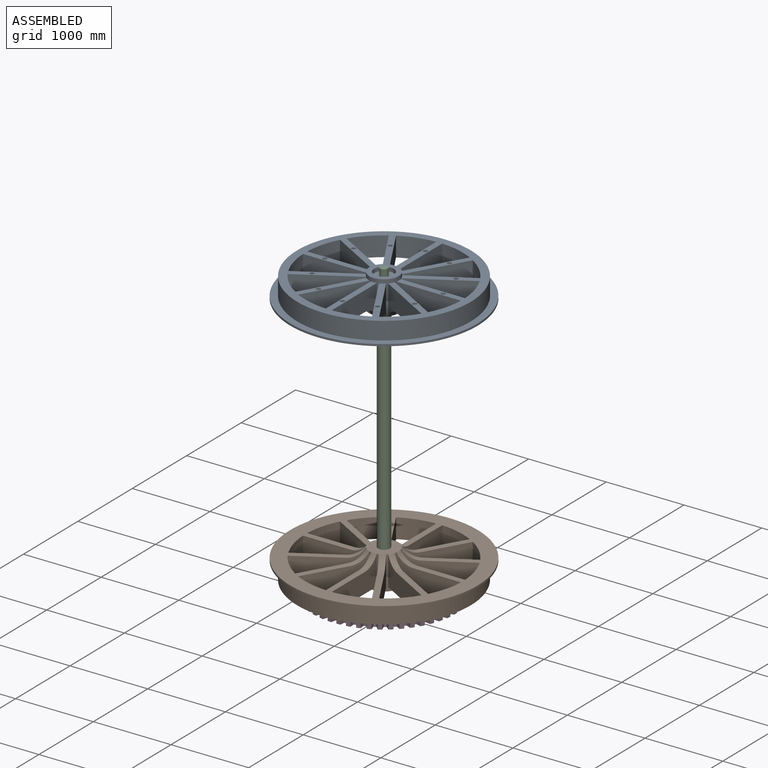
[diagram: assembled view]
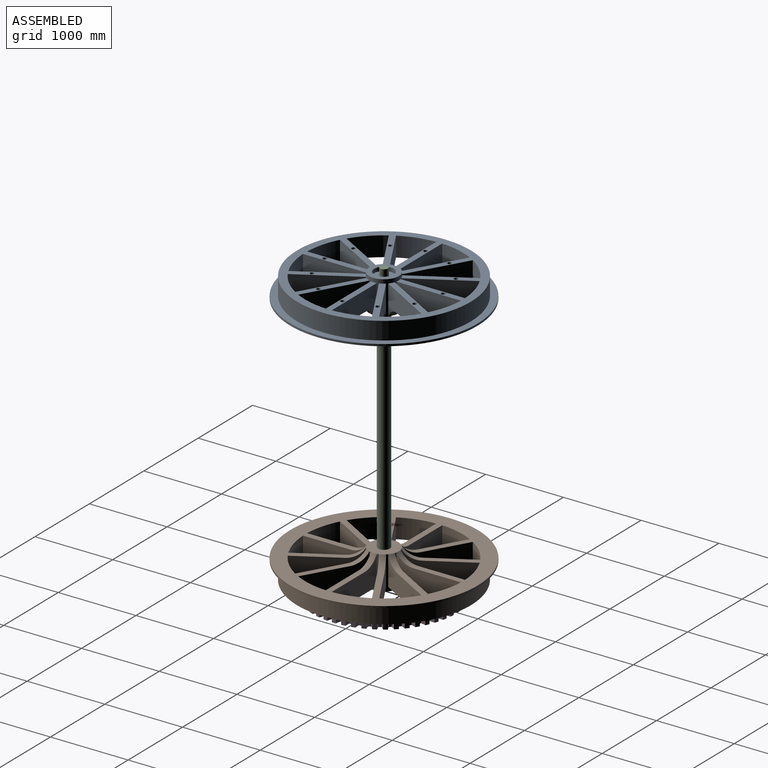
[diagram: assembled view, second angle]
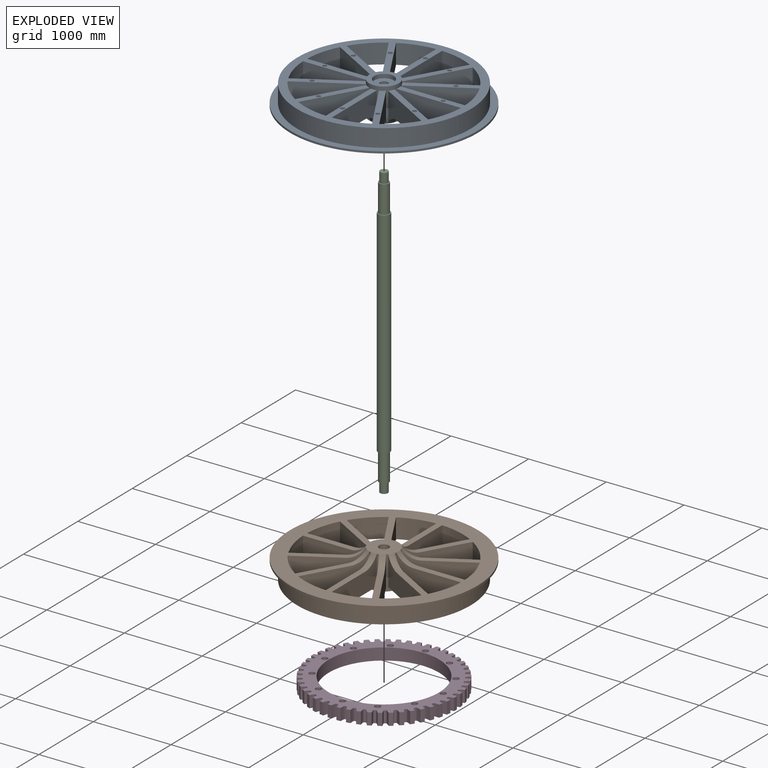
[diagram: exploded view]
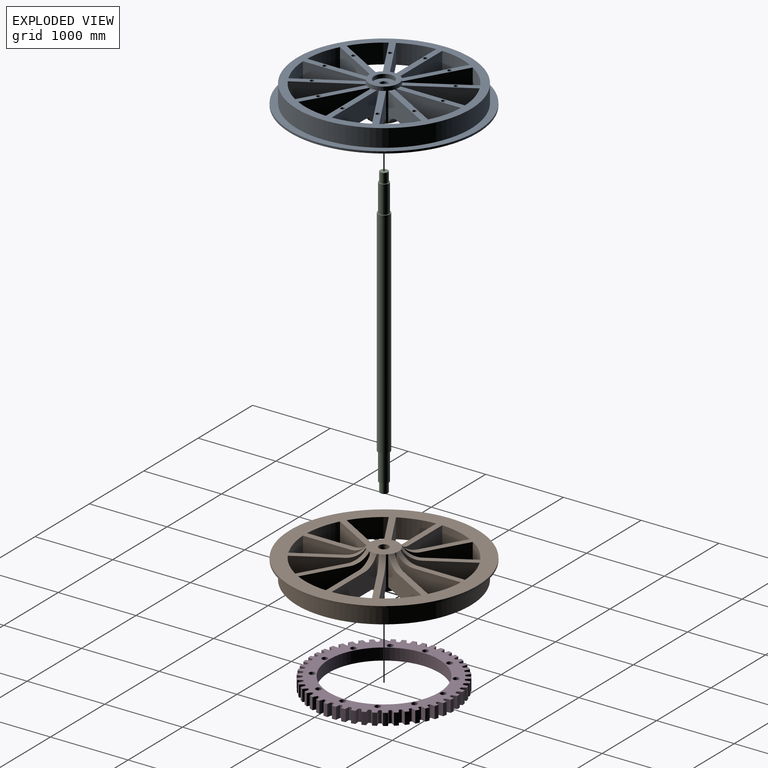
[diagram: exploded view, second angle]
ASSEMBLY  parts=4 mates=3
PART A: 85 faces, bbox 2413x2413x558.8 mm
  f0: cylinder r=50.8mm len=101.6mm, axis (0,0,1), area 8107.3mm2, adj f58,f60
  f1: cylinder r=1016mm len=436.55mm, axis (0,0,-1), area 115762.7mm2, adj f2,f36,f38,f42
  f2: plane 717.62x414.32mm, normal (0.5,0.87,0), area 218706.2mm2, adj f1,f38,f39,f42,f50
  f3: plane 717.62x414.32mm, normal (-0.5,-0.87,0), area 218705.1mm2, adj f4,f38,f39,f42,f50
  f4: cylinder r=1016mm len=319.57mm, axis (0,0,-1), area 115762.7mm2, adj f3,f5,f38,f42
  f5: plane 717.62x414.32mm, normal (0.87,0.5,0), area 218706.2mm2, adj f4,f38,f39,f42,f49
  f6: plane 717.62x414.32mm, normal (-0.87,-0.5,0), area 218705.1mm2, adj f7,f38,f39,f42,f49
  f7: cylinder r=1016mm len=436.55mm, axis (0,0,-1), area 115762.7mm2, adj f6,f8,f38,f42
  f8: plane 828.63x381mm, normal (1,0,0), area 218706.2mm2, adj f7,f38,f39,f42,f48
  f9: plane 828.63x381mm, normal (-1,0,0), area 218705.1mm2, adj f10,f38,f39,f42,f48
  f10: cylinder r=1016mm len=436.55mm, axis (0,0,-1), area 115762.7mm2, adj f9,f11,f38,f42
  f11: plane 717.62x414.32mm, normal (0.87,-0.5,0), area 218706.2mm2, adj f10,f38,f39,f42,f47
  f12: plane 717.62x414.32mm, normal (-0.87,0.5,0), area 218705.1mm2, adj f13,f38,f39,f42,f47
  f13: cylinder r=1016mm len=319.57mm, axis (0,0,-1), area 115762.7mm2, adj f12,f14,f38,f42
  f14: plane 717.62x414.32mm, normal (0.5,-0.87,0), area 218706.2mm2, adj f13,f38,f39,f42,f46
  f15: plane 717.62x414.32mm, normal (-0.5,0.87,0), area 218705.1mm2, adj f16,f38,f39,f42,f46
  f16: cylinder r=1016mm len=436.55mm, axis (0,0,-1), area 115762.7mm2, adj f15,f17,f38,f42
  f17: plane 828.63x381mm, normal (0,-1,0), area 218706.2mm2, adj f16,f38,f39,f42,f45
  f18: plane 828.63x381mm, normal (0,1,0), area 218705.1mm2, adj f19,f38,f39,f42,f45
  f19: cylinder r=1016mm len=436.55mm, axis (0,0,-1), area 115762.7mm2, adj f18,f20,f38,f42
  f20: plane 717.62x414.32mm, normal (-0.5,-0.87,0), area 218706.2mm2, adj f19,f38,f39,f42,f52
  f21: plane 717.62x414.32mm, normal (0.5,0.87,0), area 218705.1mm2, adj f22,f38,f39,f42,f52
  f22: cylinder r=1016mm len=319.57mm, axis (0,0,-1), area 115762.7mm2, adj f21,f23,f38,f42
  f23: plane 717.62x414.32mm, normal (-0.87,-0.5,0), area 218706.2mm2, adj f22,f38,f39,f42,f51
  f24: plane 717.62x414.32mm, normal (0.87,0.5,0), area 218705.1mm2, adj f25,f38,f39,f42,f51
  f25: cylinder r=1016mm len=436.55mm, axis (0,0,-1), area 115762.7mm2, adj f24,f26,f38,f42
  f26: plane 828.63x381mm, normal (-1,0,0), area 218707.3mm2, adj f25,f38,f39,f42,f53
  f27: plane 828.63x381mm, normal (1,0,0), area 218707.3mm2, adj f28,f38,f39,f42,f53
  f28: cylinder r=1016mm len=436.55mm, axis (0,0,-1), area 115762.7mm2, adj f27,f29,f38,f42
  f29: plane 717.62x414.32mm, normal (-0.87,0.5,0), area 218706.2mm2, adj f28,f38,f39,f42,f54
  f30: plane 717.62x414.32mm, normal (0.87,-0.5,0), area 218705.1mm2, adj f31,f38,f39,f42,f54
  f31: cylinder r=1016mm len=319.57mm, axis (0,0,-1), area 115762.7mm2, adj f30,f32,f38,f42
  f32: plane 717.62x414.32mm, normal (-0.5,0.87,0), area 218706.2mm2, adj f31,f38,f39,f42,f55
  f33: plane 717.62x414.32mm, normal (0.5,-0.87,0), area 218705.1mm2, adj f34,f38,f39,f42,f55
  f34: cylinder r=1016mm len=436.55mm, axis (0,0,-1), area 115762.7mm2, adj f33,f35,f38,f42
  f35: plane 828.63x381mm, normal (0,1,0), area 218706.2mm2, adj f34,f38,f39,f42,f56
  f36: plane 828.63x381mm, normal (0,-1,0), area 218705.1mm2, adj f1,f38,f39,f42,f56
  f37: cylinder r=1117.6mm len=2235.2mm, axis (0,0,-1), area 1605249.3mm2, adj f38,f43
  f38: plane 2235.2x2235.2mm, normal (0,0,1), area 1412480.7mm2, adj f1,f2,f3,f4,f5,f6,f7,f8
  f39: cylinder r=190.5mm len=431.8mm, axis (0,0,-1), area 166089.8mm2, adj f2,f3,f5,f6,f8,f9,f11,f12
  f40: plane 381x381mm, normal (0,0,1), area 63338.4mm2, adj f39,f59
  f41: cylinder r=1206.5mm len=2413mm, axis (0,0,1), area 192548.8mm2, adj f42,f43
  f42: plane 2413x2413mm, normal (0,0,-1), area 1884125.2mm2, adj f1,f2,f3,f4,f5,f6,f7,f8
  f43: plane 2413x2413mm, normal (0,0,1), area 649092.3mm2, adj f37,f41
  f44: plane 381x381mm, normal (0,0,-1), area 101341.5mm2, adj f39,f45,f46,f47,f48,f49,f50,f51
  f45: torus R=410.47mm, axis (0,0,1), area 20337.7mm2, adj f17,f18,f42,f44
  f46: torus R=410.47mm, axis (0,0,1), area 20337.7mm2, adj f14,f15,f42,f44
  f47: torus R=410.47mm, axis (0,0,1), area 20337.7mm2, adj f11,f12,f42,f44
  f48: torus R=410.47mm, axis (0,0,1), area 20337.7mm2, adj f8,f9,f42,f44
  f49: torus R=410.47mm, axis (0,0,1), area 20337.7mm2, adj f5,f6,f42,f44
  f50: torus R=410.47mm, axis (0,0,1), area 20337.7mm2, adj f2,f3,f42,f44
  f51: torus R=410.47mm, axis (0,0,1), area 20337.7mm2, adj f23,f24,f42,f44
  f52: torus R=410.47mm, axis (0,0,1), area 20337.7mm2, adj f20,f21,f42,f44
  f53: torus R=410.47mm, axis (0,0,1), area 20337.7mm2, adj f26,f27,f42,f44
  f54: torus R=410.47mm, axis (0,0,1), area 20337.7mm2, adj f29,f30,f42,f44
  f55: torus R=410.47mm, axis (0,0,1), area 20337.7mm2, adj f32,f33,f42,f44
  f56: torus R=410.47mm, axis (0,0,1), area 20337.7mm2, adj f35,f36,f42,f44
  f57: cylinder r=63.5mm len=355.6mm, axis (0,0,-1), area 141878.1mm2, adj f44,f58
  f58: plane 127x127mm, normal (0,0,-1), area 4560.4mm2, adj f0,f57
  f59: cylinder r=127mm len=254mm, axis (0,0,1), area 40536.6mm2, adj f40,f60
  f60: plane 254x254mm, normal (0,0,1), area 42563.4mm2, adj f0,f59
  f61: plane 50.8x50.8mm, normal (0,0,1), area 2026.8mm2, adj f62
  f62: cylinder r=25.4mm len=228.6mm, axis (0,0,-1), area 36482.9mm2, adj f38,f61
  f63: plane 50.8x50.8mm, normal (0,0,1), area 2026.8mm2, adj f64
  f64: cylinder r=25.4mm len=228.6mm, axis (0,0,-1), area 36482.9mm2, adj f38,f63
  f65: plane 50.8x50.8mm, normal (0,0,1), area 2026.8mm2, adj f66
  f66: cylinder r=25.4mm len=228.6mm, axis (0,0,-1), area 36482.9mm2, adj f38,f65
  f67: plane 50.8x50.8mm, normal (0,0,1), area 2026.8mm2, adj f68
  f68: cylinder r=25.4mm len=228.6mm, axis (0,0,-1), area 36482.9mm2, adj f38,f67
  f69: plane 50.8x50.8mm, normal (0,0,1), area 2026.8mm2, adj f70
  f70: cylinder r=25.4mm len=228.6mm, axis (0,0,-1), area 36482.9mm2, adj f38,f69
  f71: plane 50.8x50.8mm, normal (0,0,1), area 2026.8mm2, adj f72
  f72: cylinder r=25.4mm len=228.6mm, axis (0,0,-1), area 36482.9mm2, adj f38,f71
  f73: plane 50.8x50.8mm, normal (0,0,1), area 2026.8mm2, adj f74
  f74: cylinder r=25.4mm len=228.6mm, axis (0,0,-1), area 36482.9mm2, adj f38,f73
  f75: plane 50.8x50.8mm, normal (0,0,1), area 2026.8mm2, adj f76
  f76: cylinder r=25.4mm len=228.6mm, axis (0,0,-1), area 36482.9mm2, adj f38,f75
  f77: plane 50.8x50.8mm, normal (0,0,1), area 2026.8mm2, adj f78
  f78: cylinder r=25.4mm len=228.6mm, axis (0,0,-1), area 36482.9mm2, adj f38,f77
  f79: plane 50.8x50.8mm, normal (0,0,1), area 2026.8mm2, adj f80
  f80: cylinder r=25.4mm len=228.6mm, axis (0,0,-1), area 36482.9mm2, adj f38,f79
  f81: plane 50.8x50.8mm, normal (0,0,1), area 2026.8mm2, adj f82
  f82: cylinder r=25.4mm len=228.6mm, axis (0,0,-1), area 36482.9mm2, adj f38,f81
  f83: plane 50.8x50.8mm, normal (0,0,1), area 2026.8mm2, adj f84
  f84: cylinder r=25.4mm len=228.6mm, axis (0,0,-1), area 36482.9mm2, adj f38,f83
PART B: same geometry as A
PART C: 11 faces, bbox 152.4x152.4x3733.8 mm
  f0: cylinder r=76.2mm len=2768.6mm, axis (0,0,-1), area 1325546.8mm2, adj f1,f2
  f1: plane 152.4x152.4mm, normal (0,0,1), area 5573.8mm2, adj f0,f7
  f2: plane 152.4x152.4mm, normal (0,0,-1), area 5573.8mm2, adj f0,f6
  f3: plane 101.6x101.6mm, normal (0,0,-1), area 8107.3mm2, adj f4
  f4: cylinder r=50.8mm len=127mm, axis (0,0,-1), area 40536.6mm2, adj f3,f5
  f5: plane 127x127mm, normal (0,0,-1), area 4560.4mm2, adj f4,f6
  f6: cylinder r=63.5mm len=355.6mm, axis (0,0,-1), area 141878.1mm2, adj f2,f5
  f7: cylinder r=63.5mm len=355.6mm, axis (0,0,-1), area 141878.1mm2, adj f1,f8
  f8: plane 127x127mm, normal (0,0,1), area 4560.4mm2, adj f7,f9
  f9: cylinder r=50.8mm len=127mm, axis (0,0,-1), area 40536.6mm2, adj f8,f10
  f10: plane 101.6x101.6mm, normal (0,0,1), area 8107.3mm2, adj f9
PART D: 215 faces, bbox 1841.5x1840.4x152.4 mm
  f0: cylinder r=857.25mm len=152.4mm, axis (0,0,-1), area 4849.1mm2, adj f1,f212,f213,f214
  f1: cylinder r=304.8mm len=152.4mm, axis (0,0,-1), area 10054.2mm2, adj f0,f2,f213,f214
  f2: cylinder r=920.75mm len=152.4mm, axis (0,0,-1), area 7954.1mm2, adj f1,f3,f213,f214
  f3: cylinder r=304.8mm len=152.4mm, axis (0,0,-1), area 9837.2mm2, adj f2,f4,f213,f214
  f4: cylinder r=857.25mm len=152.4mm, axis (0,0,-1), area 4849.1mm2, adj f3,f5,f213,f214
  f5: cylinder r=304.8mm len=152.4mm, axis (0,0,-1), area 10054.2mm2, adj f4,f6,f213,f214
  f6: cylinder r=920.75mm len=152.4mm, axis (0,0,-1), area 7954.1mm2, adj f5,f7,f213,f214
  f7: cylinder r=304.8mm len=152.4mm, axis (0,0,-1), area 9837.2mm2, adj f6,f8,f213,f214
  f8: cylinder r=857.25mm len=152.4mm, axis (0,0,-1), area 4849.1mm2, adj f7,f9,f213,f214
  f9: cylinder r=304.8mm len=152.4mm, axis (0,0,-1), area 10054.2mm2, adj f8,f10,f213,f214
  f10: cylinder r=920.75mm len=152.4mm, axis (0,0,-1), area 7954.1mm2, adj f9,f11,f213,f214
  f11: cylinder r=304.8mm len=152.4mm, axis (0,0,-1), area 9837.2mm2, adj f10,f12,f213,f214
  f12: cylinder r=857.25mm len=152.4mm, axis (0,0,-1), area 4849.1mm2, adj f11,f13,f213,f214
  f13: cylinder r=304.8mm len=152.4mm, axis (0,0,-1), area 10054.2mm2, adj f12,f14,f213,f214
  f14: cylinder r=920.75mm len=152.4mm, axis (0,0,-1), area 7954.1mm2, adj f13,f15,f213,f214
  f15: cylinder r=304.8mm len=152.4mm, axis (0,0,-1), area 9837.2mm2, adj f14,f16,f213,f214
  f16: cylinder r=857.25mm len=152.4mm, axis (0,0,-1), area 4849.1mm2, adj f15,f17,f213,f214
  f17: cylinder r=304.8mm len=152.4mm, axis (0,0,-1), area 10054.2mm2, adj f16,f18,f213,f214
  f18: cylinder r=920.75mm len=152.4mm, axis (0,0,-1), area 7954.1mm2, adj f17,f19,f213,f214
  f19: cylinder r=304.8mm len=152.4mm, axis (0,0,-1), area 9837.2mm2, adj f18,f20,f213,f214
  f20: cylinder r=857.25mm len=152.4mm, axis (0,0,-1), area 4849.1mm2, adj f19,f21,f213,f214
  f21: cylinder r=304.8mm len=152.4mm, axis (0,0,-1), area 10054.2mm2, adj f20,f22,f213,f214
  f22: cylinder r=920.75mm len=152.4mm, axis (0,0,-1), area 7954.1mm2, adj f21,f23,f213,f214
  f23: cylinder r=304.8mm len=152.4mm, axis (0,0,-1), area 9837.2mm2, adj f22,f24,f213,f214
  f24: cylinder r=857.25mm len=152.4mm, axis (0,0,-1), area 4849.1mm2, adj f23,f25,f213,f214
  f25: cylinder r=304.8mm len=152.4mm, axis (0,0,-1), area 10054.2mm2, adj f24,f26,f213,f214
  f26: cylinder r=920.75mm len=152.4mm, axis (0,0,-1), area 7954.1mm2, adj f25,f27,f213,f214
  f27: cylinder r=304.8mm len=152.4mm, axis (0,0,-1), area 9837.2mm2, adj f26,f28,f213,f214
  f28: cylinder r=857.25mm len=152.4mm, axis (0,0,-1), area 4849.1mm2, adj f27,f29,f213,f214
  f29: cylinder r=304.8mm len=152.4mm, axis (0,0,-1), area 10054.2mm2, adj f28,f30,f213,f214
  f30: cylinder r=920.75mm len=152.4mm, axis (0,0,-1), area 7954.1mm2, adj f29,f31,f213,f214
  f31: cylinder r=304.8mm len=152.4mm, axis (0,0,-1), area 9837.2mm2, adj f30,f32,f213,f214
  f32: cylinder r=857.25mm len=152.4mm, axis (0,0,-1), area 4849.1mm2, adj f31,f33,f213,f214
  f33: cylinder r=304.8mm len=152.4mm, axis (0,0,-1), area 10054.2mm2, adj f32,f34,f213,f214
  f34: cylinder r=920.75mm len=152.4mm, axis (0,0,-1), area 7954.1mm2, adj f33,f35,f213,f214
  f35: cylinder r=304.8mm len=152.4mm, axis (0,0,-1), area 9837.2mm2, adj f34,f36,f213,f214
  f36: cylinder r=857.25mm len=152.4mm, axis (0,0,-1), area 4849.1mm2, adj f35,f37,f213,f214
  f37: cylinder r=304.8mm len=152.4mm, axis (0,0,-1), area 10054.2mm2, adj f36,f38,f213,f214
  f38: cylinder r=920.75mm len=152.4mm, axis (0,0,-1), area 7954.1mm2, adj f37,f39,f213,f214
  f39: cylinder r=304.8mm len=152.4mm, axis (0,0,-1), area 9837.2mm2, adj f38,f40,f213,f214
  f40: cylinder r=857.25mm len=152.4mm, axis (0,0,-1), area 4849.1mm2, adj f39,f41,f213,f214
  f41: cylinder r=304.8mm len=152.4mm, axis (0,0,-1), area 10054.2mm2, adj f40,f42,f213,f214
  f42: cylinder r=920.75mm len=152.4mm, axis (0,0,-1), area 7954.1mm2, adj f41,f43,f213,f214
  f43: cylinder r=304.8mm len=152.4mm, axis (0,0,-1), area 9837.2mm2, adj f42,f44,f213,f214
  f44: cylinder r=857.25mm len=152.4mm, axis (0,0,-1), area 4849.1mm2, adj f43,f45,f213,f214
  f45: cylinder r=304.8mm len=152.4mm, axis (0,0,-1), area 10054.2mm2, adj f44,f46,f213,f214
  f46: cylinder r=920.75mm len=152.4mm, axis (0,0,-1), area 7954.1mm2, adj f45,f47,f213,f214
  f47: cylinder r=304.8mm len=152.4mm, axis (0,0,-1), area 9837.2mm2, adj f46,f48,f213,f214
  f48: cylinder r=857.25mm len=152.4mm, axis (0,0,-1), area 4849.1mm2, adj f47,f49,f213,f214
  f49: cylinder r=304.8mm len=152.4mm, axis (0,0,-1), area 10054.2mm2, adj f48,f50,f213,f214
  f50: cylinder r=920.75mm len=152.4mm, axis (0,0,-1), area 7954.1mm2, adj f49,f51,f213,f214
  f51: cylinder r=304.8mm len=152.4mm, axis (0,0,-1), area 9837.2mm2, adj f50,f52,f213,f214
  f52: cylinder r=857.25mm len=152.4mm, axis (0,0,-1), area 4849.1mm2, adj f51,f53,f213,f214
  f53: cylinder r=304.8mm len=152.4mm, axis (0,0,-1), area 10054.2mm2, adj f52,f54,f213,f214
  f54: cylinder r=920.75mm len=152.4mm, axis (0,0,-1), area 7954.1mm2, adj f53,f55,f213,f214
  f55: cylinder r=304.8mm len=152.4mm, axis (0,0,-1), area 9837.2mm2, adj f54,f56,f213,f214
  f56: cylinder r=857.25mm len=152.4mm, axis (0,0,-1), area 4849.1mm2, adj f55,f57,f213,f214
  f57: cylinder r=304.8mm len=152.4mm, axis (0,0,-1), area 10054.2mm2, adj f56,f58,f213,f214
  f58: cylinder r=920.75mm len=152.4mm, axis (0,0,-1), area 7954.1mm2, adj f57,f59,f213,f214
  f59: cylinder r=304.8mm len=152.4mm, axis (0,0,-1), area 9837.2mm2, adj f58,f60,f213,f214
  f60: cylinder r=857.25mm len=152.4mm, axis (0,0,-1), area 4849.1mm2, adj f59,f61,f213,f214
  f61: cylinder r=304.8mm len=152.4mm, axis (0,0,-1), area 10054.2mm2, adj f60,f62,f213,f214
  f62: cylinder r=920.75mm len=152.4mm, axis (0,0,-1), area 7954.1mm2, adj f61,f63,f213,f214
  f63: cylinder r=304.8mm len=152.4mm, axis (0,0,-1), area 9837.2mm2, adj f62,f64,f213,f214
  f64: cylinder r=857.25mm len=152.4mm, axis (0,0,-1), area 4849.1mm2, adj f63,f65,f213,f214
  f65: cylinder r=304.8mm len=152.4mm, axis (0,0,-1), area 10054.2mm2, adj f64,f66,f213,f214
  f66: cylinder r=920.75mm len=152.4mm, axis (0,0,-1), area 7954.1mm2, adj f65,f67,f213,f214
  f67: cylinder r=304.8mm len=152.4mm, axis (0,0,-1), area 9837.2mm2, adj f66,f68,f213,f214
  f68: cylinder r=857.25mm len=152.4mm, axis (0,0,-1), area 4849.1mm2, adj f67,f69,f213,f214
  f69: cylinder r=304.8mm len=152.4mm, axis (0,0,-1), area 10054.2mm2, adj f68,f70,f213,f214
  f70: cylinder r=920.75mm len=152.4mm, axis (0,0,-1), area 7954.1mm2, adj f69,f71,f213,f214
  f71: cylinder r=304.8mm len=152.4mm, axis (0,0,-1), area 9837.2mm2, adj f70,f72,f213,f214
  f72: cylinder r=857.25mm len=152.4mm, axis (0,0,-1), area 4849.1mm2, adj f71,f73,f213,f214
  f73: cylinder r=304.8mm len=152.4mm, axis (0,0,-1), area 10054.2mm2, adj f72,f74,f213,f214
  f74: cylinder r=920.75mm len=152.4mm, axis (0,0,-1), area 7954.1mm2, adj f73,f75,f213,f214
  f75: cylinder r=304.8mm len=152.4mm, axis (0,0,-1), area 9837.2mm2, adj f74,f76,f213,f214
  f76: cylinder r=857.25mm len=152.4mm, axis (0,0,-1), area 4849.1mm2, adj f75,f77,f213,f214
  f77: cylinder r=304.8mm len=152.4mm, axis (0,0,-1), area 10054.2mm2, adj f76,f78,f213,f214
  f78: cylinder r=920.75mm len=152.4mm, axis (0,0,-1), area 7954.1mm2, adj f77,f79,f213,f214
  f79: cylinder r=304.8mm len=152.4mm, axis (0,0,-1), area 9837.2mm2, adj f78,f80,f213,f214
  f80: cylinder r=857.25mm len=152.4mm, axis (0,0,-1), area 4849.1mm2, adj f79,f81,f213,f214
  f81: cylinder r=304.8mm len=152.4mm, axis (0,0,-1), area 10054.2mm2, adj f80,f82,f213,f214
  f82: cylinder r=920.75mm len=152.4mm, axis (0,0,-1), area 7954.1mm2, adj f81,f83,f213,f214
  f83: cylinder r=304.8mm len=152.4mm, axis (0,0,-1), area 9837.2mm2, adj f82,f84,f213,f214
  f84: cylinder r=857.25mm len=152.4mm, axis (0,0,-1), area 4849.1mm2, adj f83,f85,f213,f214
  f85: cylinder r=304.8mm len=152.4mm, axis (0,0,-1), area 10054.2mm2, adj f84,f86,f213,f214
  f86: cylinder r=920.75mm len=152.4mm, axis (0,0,-1), area 7954.1mm2, adj f85,f87,f213,f214
  f87: cylinder r=304.8mm len=152.4mm, axis (0,0,-1), area 9837.2mm2, adj f86,f88,f213,f214
  f88: cylinder r=857.25mm len=152.4mm, axis (0,0,-1), area 4849.1mm2, adj f87,f89,f213,f214
  f89: cylinder r=304.8mm len=152.4mm, axis (0,0,-1), area 10054.2mm2, adj f88,f90,f213,f214
  f90: cylinder r=920.75mm len=152.4mm, axis (0,0,-1), area 7954.1mm2, adj f89,f91,f213,f214
  f91: cylinder r=304.8mm len=152.4mm, axis (0,0,-1), area 9837.2mm2, adj f90,f92,f213,f214
  f92: cylinder r=857.25mm len=152.4mm, axis (0,0,-1), area 4849.1mm2, adj f91,f93,f213,f214
  f93: cylinder r=304.8mm len=152.4mm, axis (0,0,-1), area 10054.2mm2, adj f92,f94,f213,f214
  f94: cylinder r=920.75mm len=152.4mm, axis (0,0,-1), area 7954.1mm2, adj f93,f95,f213,f214
  f95: cylinder r=304.8mm len=152.4mm, axis (0,0,-1), area 9837.2mm2, adj f94,f96,f213,f214
  f96: cylinder r=857.25mm len=152.4mm, axis (0,0,-1), area 4849.1mm2, adj f95,f97,f213,f214
  f97: cylinder r=304.8mm len=152.4mm, axis (0,0,-1), area 10054.2mm2, adj f96,f98,f213,f214
  f98: cylinder r=920.75mm len=152.4mm, axis (0,0,-1), area 7954.1mm2, adj f97,f99,f213,f214
  f99: cylinder r=304.8mm len=152.4mm, axis (0,0,-1), area 9837.2mm2, adj f98,f100,f213,f214
  f100: cylinder r=857.25mm len=152.4mm, axis (0,0,-1), area 4849.1mm2, adj f99,f101,f213,f214
  f101: cylinder r=304.8mm len=152.4mm, axis (0,0,-1), area 10054.2mm2, adj f100,f102,f213,f214
  f102: cylinder r=920.75mm len=152.4mm, axis (0,0,-1), area 7954.1mm2, adj f101,f103,f213,f214
  f103: cylinder r=304.8mm len=152.4mm, axis (0,0,-1), area 9837.2mm2, adj f102,f104,f213,f214
  f104: cylinder r=857.25mm len=152.4mm, axis (0,0,-1), area 4849.1mm2, adj f103,f105,f213,f214
  f105: cylinder r=304.8mm len=152.4mm, axis (0,0,-1), area 10054.2mm2, adj f104,f106,f213,f214
  f106: cylinder r=920.75mm len=152.4mm, axis (0,0,-1), area 7954.1mm2, adj f105,f107,f213,f214
  f107: cylinder r=304.8mm len=152.4mm, axis (0,0,-1), area 9837.2mm2, adj f106,f108,f213,f214
  f108: cylinder r=857.25mm len=152.4mm, axis (0,0,-1), area 4849.1mm2, adj f107,f109,f213,f214
  f109: cylinder r=304.8mm len=152.4mm, axis (0,0,-1), area 10054.2mm2, adj f108,f110,f213,f214
  f110: cylinder r=920.75mm len=152.4mm, axis (0,0,-1), area 7954.1mm2, adj f109,f111,f213,f214
  f111: cylinder r=304.8mm len=152.4mm, axis (0,0,-1), area 9837.2mm2, adj f110,f112,f213,f214
  f112: cylinder r=857.25mm len=152.4mm, axis (0,0,-1), area 4849.1mm2, adj f111,f113,f213,f214
  f113: cylinder r=304.8mm len=152.4mm, axis (0,0,-1), area 10054.2mm2, adj f112,f114,f213,f214
  f114: cylinder r=920.75mm len=152.4mm, axis (0,0,-1), area 7954.1mm2, adj f113,f115,f213,f214
  f115: cylinder r=304.8mm len=152.4mm, axis (0,0,-1), area 9837.2mm2, adj f114,f116,f213,f214
  f116: cylinder r=857.25mm len=152.4mm, axis (0,0,-1), area 4849.1mm2, adj f115,f117,f213,f214
  f117: cylinder r=304.8mm len=152.4mm, axis (0,0,-1), area 10054.2mm2, adj f116,f118,f213,f214
  f118: cylinder r=920.75mm len=152.4mm, axis (0,0,-1), area 7954.1mm2, adj f117,f119,f213,f214
  f119: cylinder r=304.8mm len=152.4mm, axis (0,0,-1), area 9837.2mm2, adj f118,f120,f213,f214
  f120: cylinder r=857.25mm len=152.4mm, axis (0,0,-1), area 4849.1mm2, adj f119,f121,f213,f214
  f121: cylinder r=304.8mm len=152.4mm, axis (0,0,-1), area 10054.2mm2, adj f120,f122,f213,f214
  f122: cylinder r=920.75mm len=152.4mm, axis (0,0,-1), area 7954.1mm2, adj f121,f123,f213,f214
  f123: cylinder r=304.8mm len=152.4mm, axis (0,0,-1), area 9837.2mm2, adj f122,f124,f213,f214
  f124: cylinder r=857.25mm len=152.4mm, axis (0,0,-1), area 4849.1mm2, adj f123,f125,f213,f214
  f125: cylinder r=304.8mm len=152.4mm, axis (0,0,-1), area 10054.2mm2, adj f124,f126,f213,f214
  f126: cylinder r=920.75mm len=152.4mm, axis (0,0,-1), area 7954.1mm2, adj f125,f127,f213,f214
  f127: cylinder r=304.8mm len=152.4mm, axis (0,0,-1), area 9837.2mm2, adj f126,f128,f213,f214
  f128: cylinder r=857.25mm len=152.4mm, axis (0,0,-1), area 4849.1mm2, adj f127,f129,f213,f214
  f129: cylinder r=304.8mm len=152.4mm, axis (0,0,-1), area 10054.2mm2, adj f128,f130,f213,f214
  f130: cylinder r=920.75mm len=152.4mm, axis (0,0,-1), area 7954.1mm2, adj f129,f131,f213,f214
  f131: cylinder r=304.8mm len=152.4mm, axis (0,0,-1), area 9837.2mm2, adj f130,f132,f213,f214
  f132: cylinder r=857.25mm len=152.4mm, axis (0,0,-1), area 4849.1mm2, adj f131,f133,f213,f214
  f133: cylinder r=304.8mm len=152.4mm, axis (0,0,-1), area 10054.2mm2, adj f132,f134,f213,f214
  f134: cylinder r=920.75mm len=152.4mm, axis (0,0,-1), area 7954.1mm2, adj f133,f135,f213,f214
  f135: cylinder r=304.8mm len=152.4mm, axis (0,0,-1), area 9837.2mm2, adj f134,f136,f213,f214
  f136: cylinder r=857.25mm len=152.4mm, axis (0,0,-1), area 4849.1mm2, adj f135,f137,f213,f214
  f137: cylinder r=304.8mm len=152.4mm, axis (0,0,-1), area 10054.2mm2, adj f136,f138,f213,f214
  f138: cylinder r=920.75mm len=152.4mm, axis (0,0,-1), area 7954.1mm2, adj f137,f139,f213,f214
  f139: cylinder r=304.8mm len=152.4mm, axis (0,0,-1), area 9837.2mm2, adj f138,f140,f213,f214
  f140: cylinder r=857.25mm len=152.4mm, axis (0,0,-1), area 4849.1mm2, adj f139,f141,f213,f214
  f141: cylinder r=304.8mm len=152.4mm, axis (0,0,-1), area 10054.2mm2, adj f140,f142,f213,f214
  f142: cylinder r=920.75mm len=152.4mm, axis (0,0,-1), area 7954.1mm2, adj f141,f143,f213,f214
  f143: cylinder r=304.8mm len=152.4mm, axis (0,0,-1), area 9837.2mm2, adj f142,f144,f213,f214
  f144: cylinder r=857.25mm len=152.4mm, axis (0,0,-1), area 4849.1mm2, adj f143,f145,f213,f214
  f145: cylinder r=304.8mm len=152.4mm, axis (0,0,-1), area 10054.2mm2, adj f144,f146,f213,f214
  f146: cylinder r=920.75mm len=152.4mm, axis (0,0,-1), area 7954.1mm2, adj f145,f147,f213,f214
  f147: cylinder r=304.8mm len=152.4mm, axis (0,0,-1), area 9837.2mm2, adj f146,f148,f213,f214
  f148: cylinder r=857.25mm len=152.4mm, axis (0,0,-1), area 4849.1mm2, adj f147,f149,f213,f214
  f149: cylinder r=304.8mm len=152.4mm, axis (0,0,-1), area 10054.2mm2, adj f148,f150,f213,f214
  f150: cylinder r=920.75mm len=152.4mm, axis (0,0,-1), area 7954.1mm2, adj f149,f151,f213,f214
  f151: cylinder r=304.8mm len=152.4mm, axis (0,0,-1), area 9837.2mm2, adj f150,f152,f213,f214
  f152: cylinder r=857.25mm len=152.4mm, axis (0,0,-1), area 4849.1mm2, adj f151,f153,f213,f214
  f153: cylinder r=304.8mm len=152.4mm, axis (0,0,-1), area 10054.2mm2, adj f152,f154,f213,f214
  f154: cylinder r=920.75mm len=152.4mm, axis (0,0,-1), area 7954.1mm2, adj f153,f155,f213,f214
  f155: cylinder r=304.8mm len=152.4mm, axis (0,0,-1), area 9837.2mm2, adj f154,f156,f213,f214
  f156: cylinder r=857.25mm len=152.4mm, axis (0,0,-1), area 4849.1mm2, adj f155,f157,f213,f214
  f157: cylinder r=304.8mm len=152.4mm, axis (0,0,-1), area 10054.2mm2, adj f156,f158,f213,f214
  f158: cylinder r=920.75mm len=152.4mm, axis (0,0,-1), area 7954.1mm2, adj f157,f159,f213,f214
  f159: cylinder r=304.8mm len=152.4mm, axis (0,0,-1), area 9837.2mm2, adj f158,f160,f213,f214
  f160: cylinder r=857.25mm len=152.4mm, axis (0,0,-1), area 4849.1mm2, adj f159,f161,f213,f214
  f161: cylinder r=304.8mm len=152.4mm, axis (0,0,-1), area 10054.2mm2, adj f160,f162,f213,f214
  f162: cylinder r=920.75mm len=152.4mm, axis (0,0,-1), area 7954.1mm2, adj f161,f163,f213,f214
  f163: cylinder r=304.8mm len=152.4mm, axis (0,0,-1), area 9837.2mm2, adj f162,f164,f213,f214
  f164: cylinder r=857.25mm len=152.4mm, axis (0,0,-1), area 4849.1mm2, adj f163,f165,f213,f214
  f165: cylinder r=304.8mm len=152.4mm, axis (0,0,-1), area 10054.2mm2, adj f164,f166,f213,f214
  f166: cylinder r=920.75mm len=152.4mm, axis (0,0,-1), area 7954.1mm2, adj f165,f167,f213,f214
  f167: cylinder r=304.8mm len=152.4mm, axis (0,0,-1), area 9837.2mm2, adj f166,f168,f213,f214
  f168: cylinder r=857.25mm len=152.4mm, axis (0,0,-1), area 4849.1mm2, adj f167,f169,f213,f214
  f169: cylinder r=304.8mm len=152.4mm, axis (0,0,-1), area 10054.2mm2, adj f168,f170,f213,f214
  f170: cylinder r=920.75mm len=152.4mm, axis (0,0,-1), area 7954.1mm2, adj f169,f171,f213,f214
  f171: cylinder r=304.8mm len=152.4mm, axis (0,0,-1), area 9837.2mm2, adj f170,f172,f213,f214
  f172: cylinder r=857.25mm len=152.4mm, axis (0,0,-1), area 4849.1mm2, adj f171,f173,f213,f214
  f173: cylinder r=304.8mm len=152.4mm, axis (0,0,-1), area 10054.2mm2, adj f172,f174,f213,f214
  f174: cylinder r=920.75mm len=152.4mm, axis (0,0,-1), area 7954.1mm2, adj f173,f175,f213,f214
  f175: cylinder r=304.8mm len=152.4mm, axis (0,0,-1), area 9837.2mm2, adj f174,f176,f213,f214
  f176: cylinder r=857.25mm len=152.4mm, axis (0,0,-1), area 4849.1mm2, adj f175,f177,f213,f214
  f177: cylinder r=304.8mm len=152.4mm, axis (0,0,-1), area 10054.2mm2, adj f176,f178,f213,f214
  f178: cylinder r=920.75mm len=152.4mm, axis (0,0,-1), area 7954.1mm2, adj f177,f179,f213,f214
  f179: cylinder r=304.8mm len=152.4mm, axis (0,0,-1), area 9837.2mm2, adj f178,f180,f213,f214
  f180: cylinder r=857.25mm len=152.4mm, axis (0,0,-1), area 4849.1mm2, adj f179,f181,f213,f214
  f181: cylinder r=304.8mm len=152.4mm, axis (0,0,-1), area 10054.2mm2, adj f180,f182,f213,f214
  f182: cylinder r=920.75mm len=152.4mm, axis (0,0,-1), area 7954.1mm2, adj f181,f183,f213,f214
  f183: cylinder r=304.8mm len=152.4mm, axis (0,0,-1), area 9837.2mm2, adj f182,f184,f213,f214
  f184: cylinder r=857.25mm len=152.4mm, axis (0,0,-1), area 4849.1mm2, adj f183,f185,f213,f214
  f185: cylinder r=304.8mm len=152.4mm, axis (0,0,-1), area 10054.2mm2, adj f184,f186,f213,f214
  f186: cylinder r=920.75mm len=152.4mm, axis (0,0,-1), area 7954.1mm2, adj f185,f187,f213,f214
  f187: cylinder r=304.8mm len=152.4mm, axis (0,0,-1), area 9837.2mm2, adj f186,f188,f213,f214
  f188: cylinder r=857.25mm len=152.4mm, axis (0,0,-1), area 4849.1mm2, adj f187,f189,f213,f214
  f189: cylinder r=304.8mm len=152.4mm, axis (0,0,-1), area 10054.2mm2, adj f188,f190,f213,f214
  f190: cylinder r=920.75mm len=152.4mm, axis (0,0,-1), area 7954.1mm2, adj f189,f191,f213,f214
  f191: cylinder r=304.8mm len=152.4mm, axis (0,0,-1), area 9837.2mm2, adj f190,f192,f213,f214
  f192: cylinder r=857.25mm len=152.4mm, axis (0,0,-1), area 4849.1mm2, adj f191,f193,f213,f214
  f193: cylinder r=304.8mm len=152.4mm, axis (0,0,-1), area 10054.2mm2, adj f192,f194,f213,f214
  f194: cylinder r=920.75mm len=152.4mm, axis (0,0,-1), area 7954.1mm2, adj f193,f195,f213,f214
  f195: cylinder r=304.8mm len=152.4mm, axis (0,0,-1), area 9837.2mm2, adj f194,f196,f213,f214
  f196: cylinder r=857.25mm len=152.4mm, axis (0,0,-1), area 4849.1mm2, adj f195,f197,f213,f214
  f197: cylinder r=304.8mm len=152.4mm, axis (0,0,-1), area 10054.2mm2, adj f196,f198,f213,f214
  f198: cylinder r=920.75mm len=152.4mm, axis (0,0,-1), area 7954.1mm2, adj f197,f212,f213,f214
  f199: cylinder r=711.2mm len=1422.4mm, axis (0,0,-1), area 681014.9mm2, adj f213,f214
  f200: cylinder r=38.1mm len=152.4mm, axis (0,0,-1), area 36482.9mm2, adj f213,f214
  f201: cylinder r=38.1mm len=152.4mm, axis (0,0,-1), area 36482.9mm2, adj f213,f214
  f202: cylinder r=38.1mm len=152.4mm, axis (0,0,-1), area 36482.9mm2, adj f213,f214
  f203: cylinder r=38.1mm len=152.4mm, axis (0,0,-1), area 36482.9mm2, adj f213,f214
  f204: cylinder r=38.1mm len=152.4mm, axis (0,0,-1), area 36482.9mm2, adj f213,f214
  f205: cylinder r=38.1mm len=152.4mm, axis (0,0,-1), area 36482.9mm2, adj f213,f214
  f206: cylinder r=38.1mm len=152.4mm, axis (0,0,-1), area 36482.9mm2, adj f213,f214
  f207: cylinder r=38.1mm len=152.4mm, axis (0,0,-1), area 36482.9mm2, adj f213,f214
  f208: cylinder r=38.1mm len=152.4mm, axis (0,0,-1), area 36482.9mm2, adj f213,f214
  f209: cylinder r=38.1mm len=152.4mm, axis (0,0,-1), area 36482.9mm2, adj f213,f214
  f210: cylinder r=38.1mm len=152.4mm, axis (0,0,-1), area 36482.9mm2, adj f213,f214
  f211: cylinder r=38.1mm len=152.4mm, axis (0,0,-1), area 36482.9mm2, adj f213,f214
  f212: cylinder r=304.8mm len=152.4mm, axis (0,0,-1), area 9837.2mm2, adj f0,f198,f213,f214
  f213: plane 1841.5x1840.41mm, normal (0,0,1), area 860669.5mm2, adj f0,f1,f2,f3,f4,f5,f6,f7
  f214: plane 1841.5x1840.41mm, normal (0,0,-1), area 860669.5mm2, adj f0,f1,f2,f3,f4,f5,f6,f7
PLACE A t=(-10282.6,-1012.47,3119.43)mm
PLACE B rot(axis=(1,0,0),180deg) t=(-10282.6,5591.53,46.03)mm
PLACE C t=(-8022,-479.07,1582.73)mm
PLACE D t=(-13762.4,-1774.47,-334.97)mm
MATE fastened D.f200 <-> B.f70  axis (0,0,1) through (2138,3051.53,-182.57)mm
MATE fastened A.f0 <-> C.f0  axis (0,0,-1) through (2138,2289.53,2967.03)mm
MATE fastened B.f0 <-> C.f0  axis (0,0,1) through (2138,2289.53,198.43)mm
